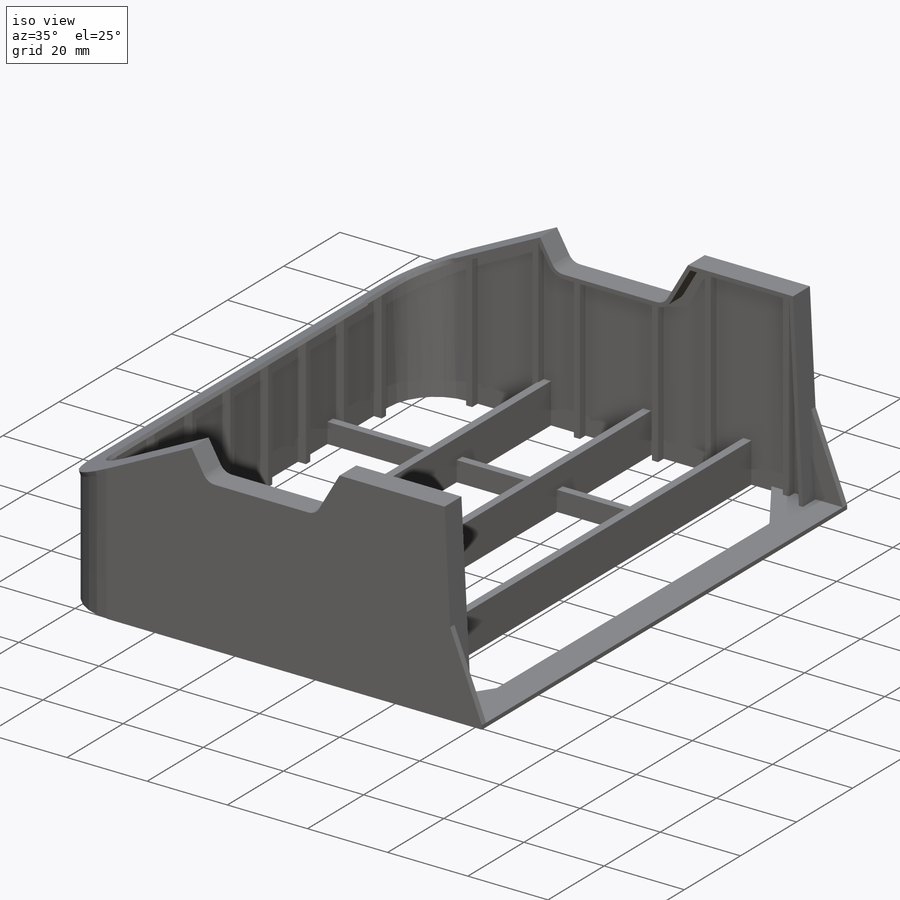
[diagram: iso view]
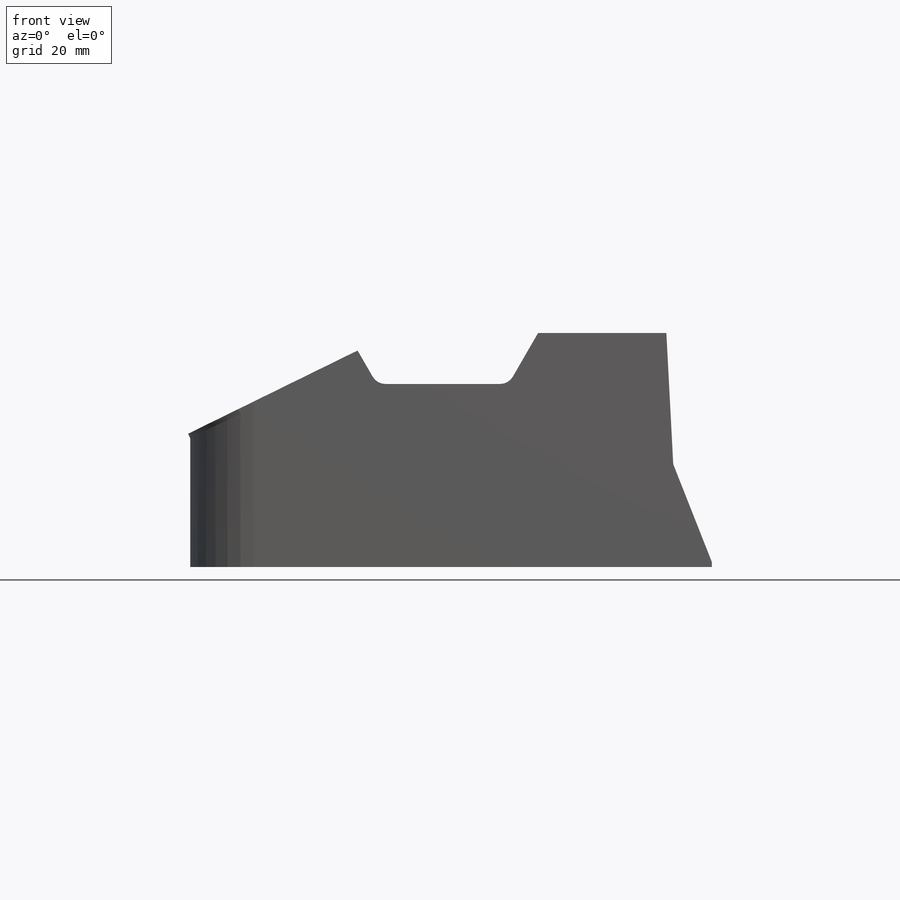
[diagram: front view]
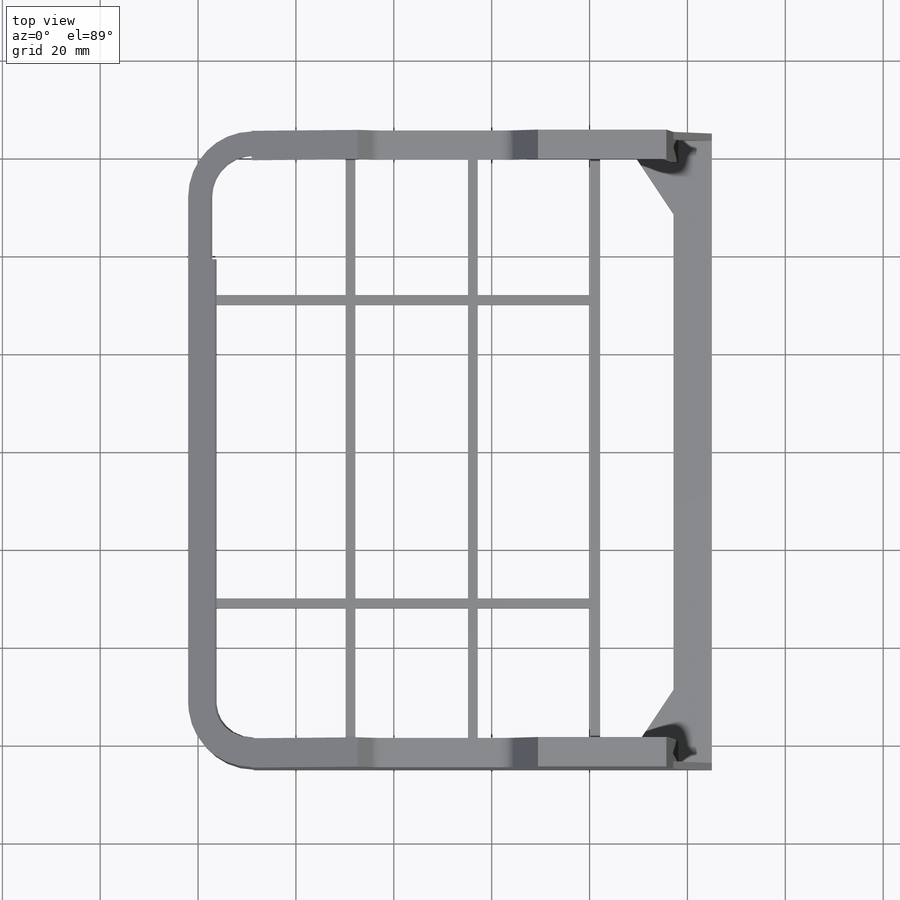
[diagram: top view]
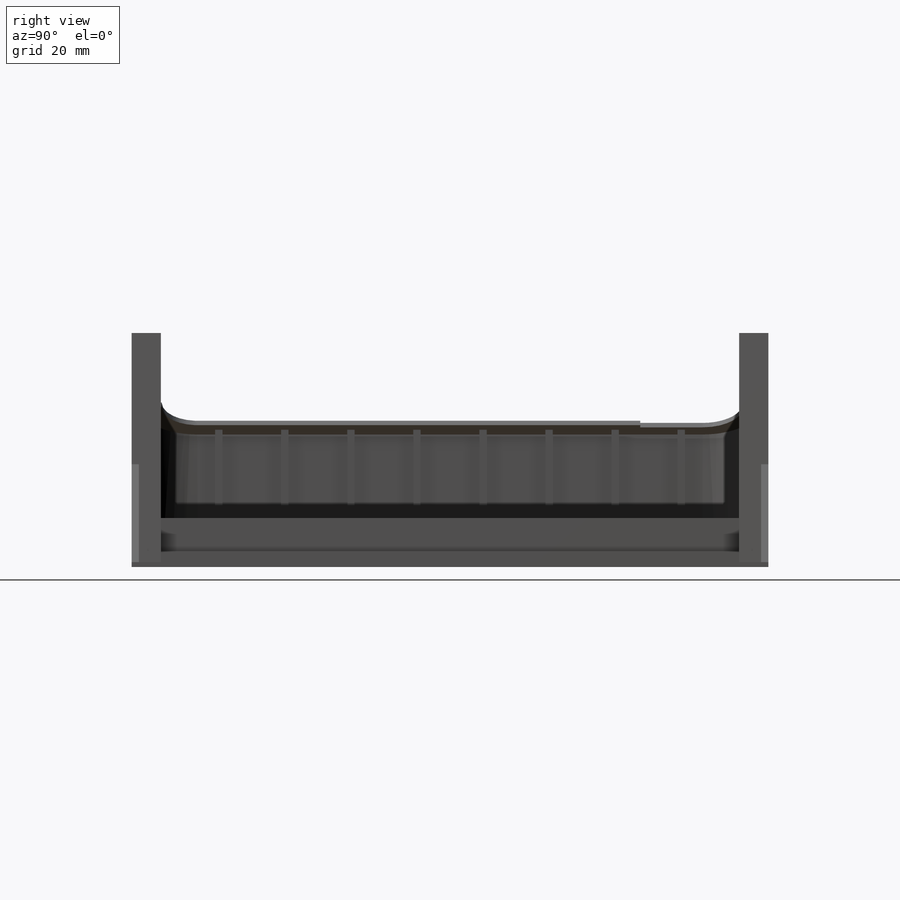
[diagram: right view]
SOLIDWORKS PART (.sldprt)
format: sldprt  version: not decoded by parser v0  size: 2,146,816 bytes
history: native  units: mm
features: sketch x12, extrude x12, mirror x2, material x1, move_body x1, plane x1, delete_body x1 + 1 further entry (+16 scaffold rows collapsed; 6 parser-record rows omitted)
feature tree (53):
  scaffold x16  (default folders/planes/origin — collapsed)
  material  "Material <not specified>"
  "CHASSIS, UNIBODY, FRONT"
  parser-record x6  (decoder bookkeeping rows leaked as tree rows — omitted from the tree; the rows remain in map.json)
  move_body  "Body-Move/Copy2"
  sketch  "Sketch1"  dims[D1=1.0mm]
  extrude  "Boss-Extrude1"  Depth=5mm
  plane  "Plane1"
  mirror  "Mirror1"
  sketch  "Sketch2"  dims[D3=1.0mm D1=1.0mm D2=5.0mm]
  extrude  "Boss-Extrude2"  Depth=1mm
  sketch  "Sketch3"  dims[D1=1.5mm]
  extrude  "Boss-Extrude3"  [1 undecoded]
  sketch  "Sketch4"  dims[D1=1.5mm]
  extrude  "Boss-Extrude4"  [1 undecoded]
  sketch  "Sketch5"  dims[D1=1.5mm]
  extrude  "Boss-Extrude6"  [1 undecoded]
  sketch  "Sketch6"  dims[D1=5.0mm]
  extrude  "Boss-Extrude8"  Depth=1mm
  sketch  "Sketch7"  dims[D1=0.0mm]
  extrude  "Boss-Extrude9"  Depth=1mm
  sketch  "Sketch9"  dims[D1=1.5mm D2=2.0mm D3=18.0mm D4=18.0mm D5=15.0mm D6=12.0mm D7=12.0mm D8=12.0mm D9=6.0mm]
  extrude  "Boss-Extrude10"  [1 undecoded]
  sketch  "Sketch10"  dims[D1=20.0mm]
  extrude  "Boss-Extrude11"  Depth=1.5mm
  mirror  "Mirror4"
  sketch  "Sketch11"  dims[D1=10.0mm D2=15.0mm]
  extrude  "Boss-Extrude13"  Depth=1mm
  delete_body  "Body-Delete1"
  sketch  "Sketch12"  dims[D1=2.0mm D2=25.0mm D3=25.0mm D4=15.0mm]
  extrude  "Boss-Extrude14"  Depth=10mm
  sketch  "Sketch13"  dims[D1=2.0mm D2=30.0mm D3=30.0mm]
  extrude  "Boss-Extrude15"  Depth=5mm
decode coverage: 20 of 28 modeling features carry decoded parameters; 1 rows unclassified (native names shown)
note: 4 parameter values undecoded
summary: no parameter record found for 4 features
note: suppression state not decoded; provenance and decode notes live in map.json
